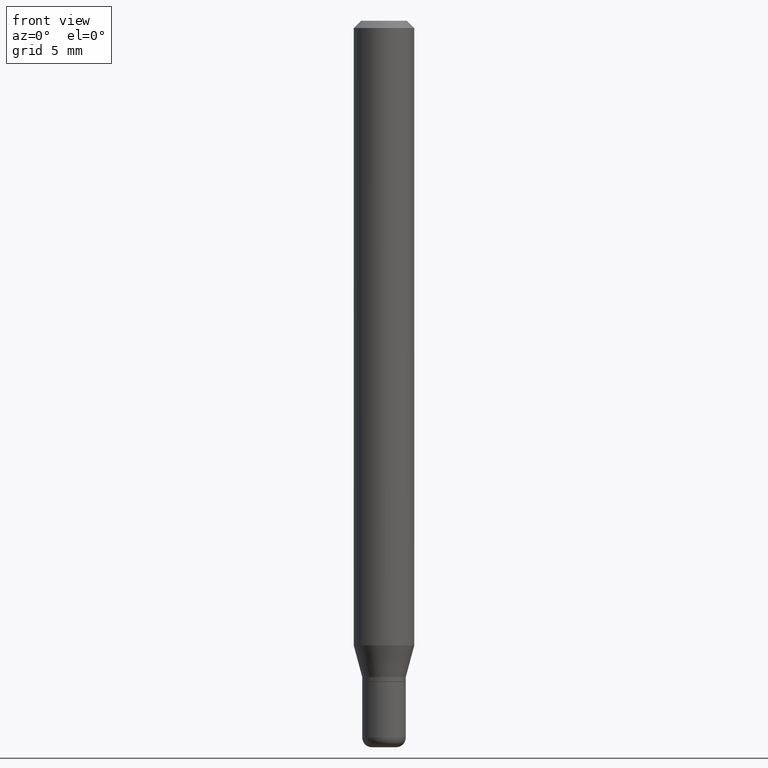
[diagram: clean part render]
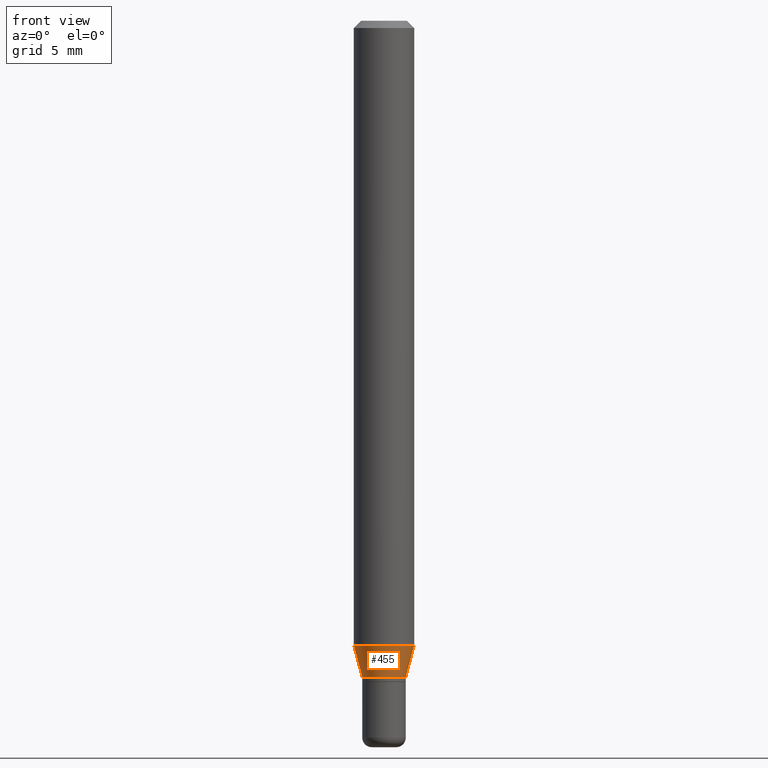
[diagram: same view with one face highlighted and labeled with its STEP entity id]
A machine part, front view. The second image highlights one B-rep face of the part: STEP entity #455.
In plain terms, the highlighted conical surface has half-angle 15 deg.
Its self-contained STEP definition (entity closure, byte-faithful):
#11 = CIRCLE ( 'NONE', #264, 0.06250000000000000000 ) ;
#45 = VERTEX_POINT ( 'NONE', #304 ) ;
#55 = DIRECTION ( 'NONE',  ( 0.2588190451025206840, 1.565188264969626504E-15, 0.9659258262890682012 ) ) ;
#59 = CARTESIAN_POINT ( 'NONE',  ( 3.313610232380860851E-29, -4.730957214132463209E-15, -1.355000000000000204 ) ) ;
#62 = AXIS2_PLACEMENT_3D ( 'NONE', #110, #495, #375 ) ;
#74 = CARTESIAN_POINT ( 'NONE',  ( -0.04500000000000003303, -4.411212983040417053E-15, -1.355000000000000204 ) ) ;
#83 = VERTEX_POINT ( 'NONE', #261 ) ;
#93 = VERTEX_POINT ( 'NONE', #193 ) ;
#104 = DIRECTION ( 'NONE',  ( 1.000000000000000000, -6.982962677686263555E-15, 0.000000000000000000 ) ) ;
#109 = EDGE_LOOP ( 'NONE', ( #317, #516, #374, #210 ) ) ;
#110 = CARTESIAN_POINT ( 'NONE',  ( 3.313610232380860851E-29, -4.730957214132463209E-15, -1.355000000000000204 ) ) ;
#112 = VECTOR ( 'NONE', #123, 39.37007874015748854 ) ;
#123 = DIRECTION ( 'NONE',  ( -0.2588190451025206840, 5.211531920934545520E-15, 0.9659258262890682012 ) ) ;
#141 = CARTESIAN_POINT ( 'NONE',  ( 3.153894490303225812E-29, -4.502925463503242152E-15, -1.289689110867545008 ) ) ;
#193 = CARTESIAN_POINT ( 'NONE',  ( -0.04500000000000003303, -4.235024618346798294E-15, -1.355000000000000204 ) ) ;
#205 = EDGE_CURVE ( 'NONE', #93, #45, #424, .T. ) ;
#210 = ORIENTED_EDGE ( 'NONE', *, *, #406, .F. ) ;
#213 = CARTESIAN_POINT ( 'NONE',  ( 0.04500000000000003303, -5.045190534628344896E-15, -1.355000000000000204 ) ) ;
#246 = DIRECTION ( 'NONE',  ( 1.000000000000000000, -6.982962677686262766E-15, 0.000000000000000000 ) ) ;
#251 = CARTESIAN_POINT ( 'NONE',  ( 0.06250000000000000000, -4.939360630858633822E-15, -1.289689110867545008 ) ) ;
#253 = DIRECTION ( 'NONE',  ( -2.445468806185136597E-29, 3.491481338843145583E-15, 1.000000000000000000 ) ) ;
#261 = CARTESIAN_POINT ( 'NONE',  ( 0.04500000000000003303, -5.045190534628344896E-15, -1.355000000000000204 ) ) ;
#263 = FACE_OUTER_BOUND ( 'NONE', #109, .T. ) ;
#264 = AXIS2_PLACEMENT_3D ( 'NONE', #141, #448, #246 ) ;
#304 = CARTESIAN_POINT ( 'NONE',  ( -0.06250000000000000000, -4.058836253653178747E-15, -1.289689110867545008 ) ) ;
#317 = ORIENTED_EDGE ( 'NONE', *, *, #205, .F. ) ;
#324 = VECTOR ( 'NONE', #55, 39.37007874015748854 ) ;
#327 = LINE ( 'NONE', #213, #324 ) ;
#341 = VERTEX_POINT ( 'NONE', #251 ) ;
#359 = EDGE_CURVE ( 'NONE', #83, #341, #327, .T. ) ;
#374 = ORIENTED_EDGE ( 'NONE', *, *, #359, .T. ) ;
#375 = DIRECTION ( 'NONE',  ( 1.000000000000000000, -6.982962677686263555E-15, 0.000000000000000000 ) ) ;
#405 = CIRCLE ( 'NONE', #453, 0.04500000000000003303 ) ;
#406 = EDGE_CURVE ( 'NONE', #45, #341, #11, .T. ) ;
#424 = LINE ( 'NONE', #74, #112 ) ;
#444 = CONICAL_SURFACE ( 'NONE', #62, 0.04500000000000003303, 0.2617993877991494078 ) ;
#448 = DIRECTION ( 'NONE',  ( -2.445468806185136597E-29, 3.491481338843145583E-15, 1.000000000000000000 ) ) ;
#453 = AXIS2_PLACEMENT_3D ( 'NONE', #59, #253, #104 ) ;
#455 = ADVANCED_FACE ( 'NONE', ( #263 ), #444, .T. ) ;
#467 = EDGE_CURVE ( 'NONE', #93, #83, #405, .T. ) ;
#495 = DIRECTION ( 'NONE',  ( -2.445468806185136597E-29, 3.491481338843145583E-15, 1.000000000000000000 ) ) ;
#516 = ORIENTED_EDGE ( 'NONE', *, *, #467, .T. ) ;